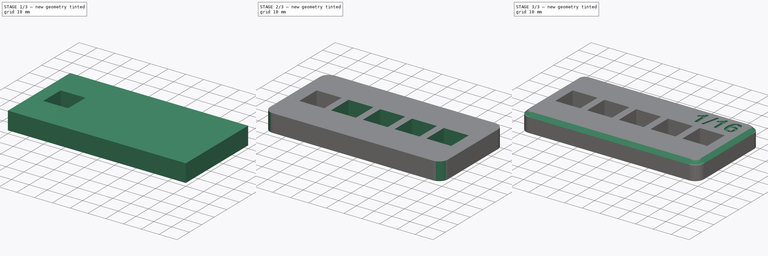
[diagram: build sequence overview — one tinted view per stage of 3, left to right]
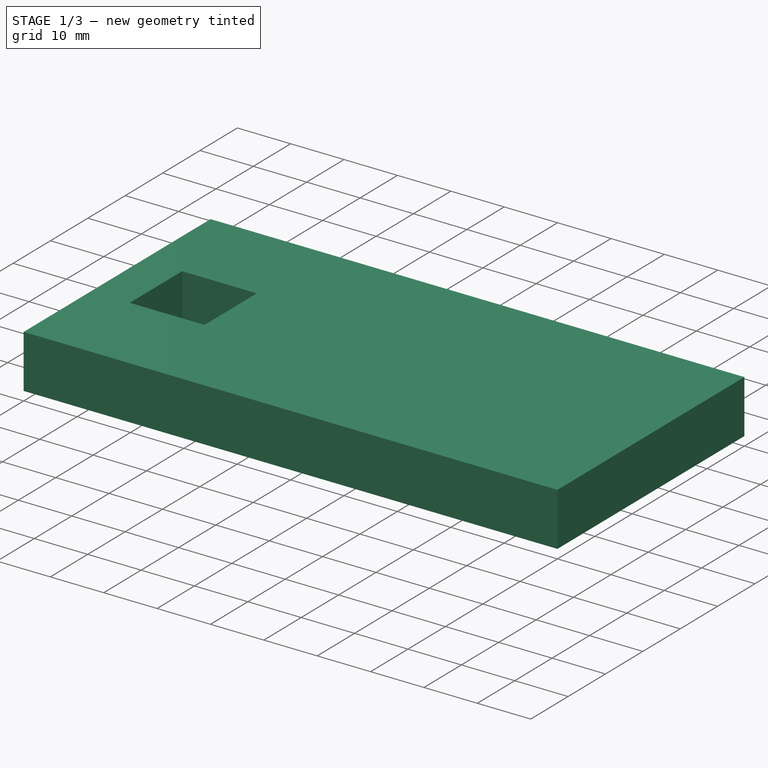
[diagram: stage 1 of 3 — iso view after this stage's code; geometry added in this stage tinted green]
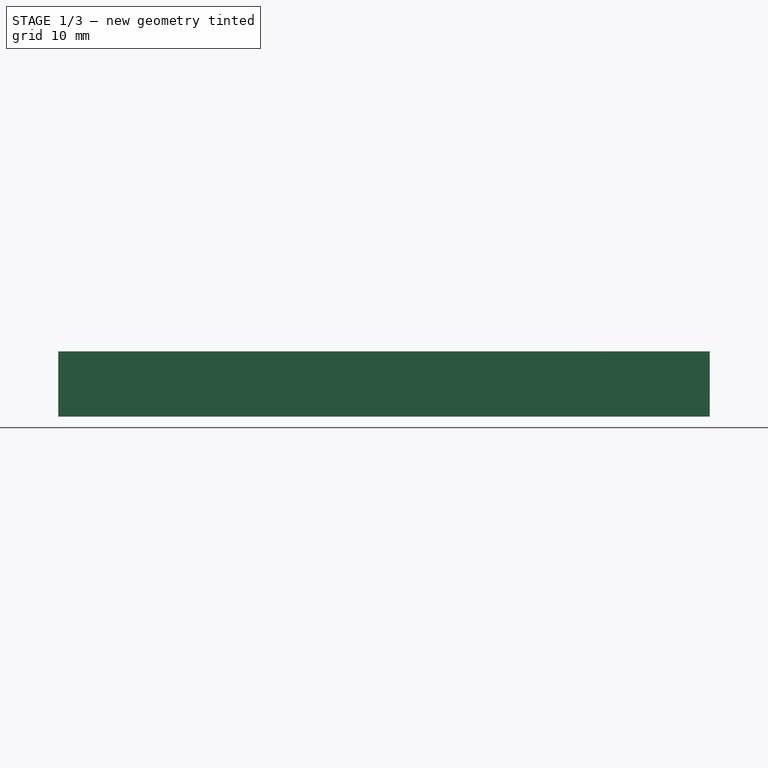
[diagram: stage 1 of 3 — front view after this stage's code; geometry added in this stage tinted green]
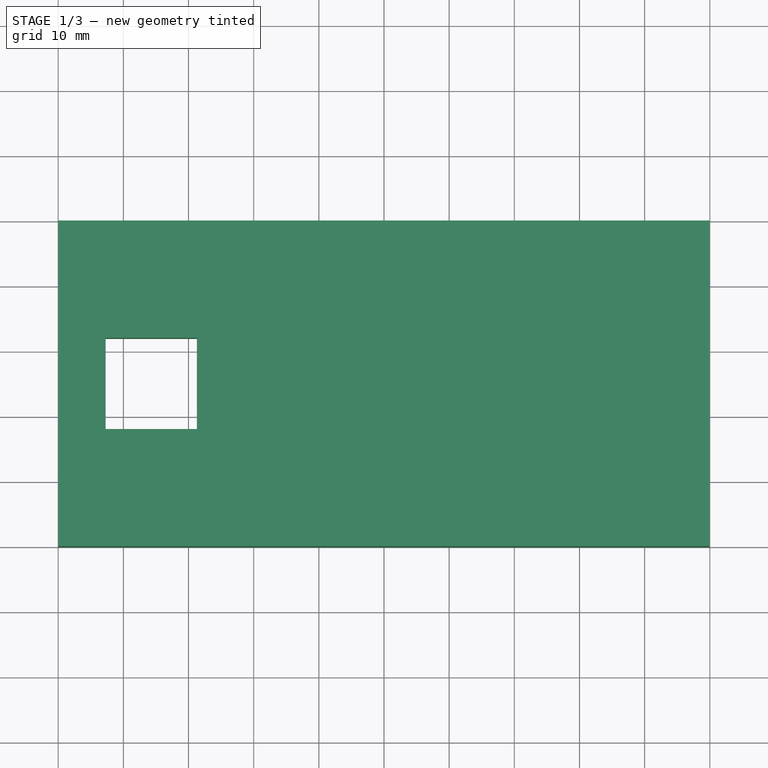
[diagram: stage 1 of 3 — top view after this stage's code; geometry added in this stage tinted green]
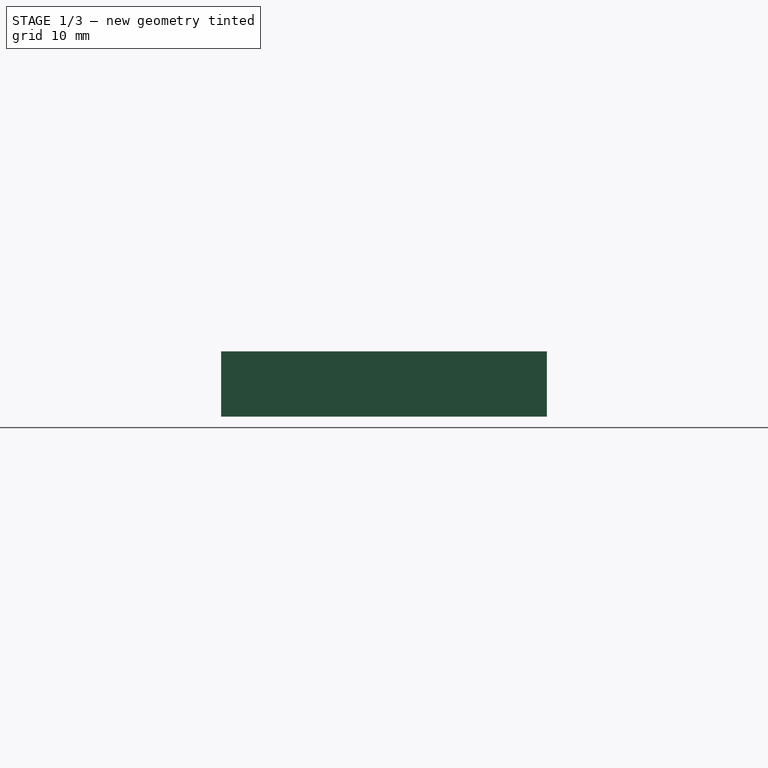
[diagram: stage 1 of 3 — right view after this stage's code; geometry added in this stage tinted green]
FCSTD DOCUMENT  (FreeCAD 0.21R33771 (Git))
Label: NarrowKeyTestRig
License: All rights reserved
LicenseURL: http://en.wikipedia.org/wiki/All_rights_reserved
objects: PartDesign::Pocket×2, Part::Part2DObjectPython×2, PartDesign::AdditiveBox×1, Sketcher::SketchObject×1, PartDesign::FeaturePython×1, PartDesign::Fillet×1, PartDesign::Chamfer×1, Spreadsheet::Sheet×1, PartDesign::Body×1
note: 15 computed .brp shape members not serialized (recipe doc carries the construction recipe); baked Part::Feature solids carry a one-line shape summary decoded from their .brp

FEATURE [PartDesign::AdditiveBox] Box
  AttacherType = Attacher::AttachEngine3D
  Height = 10
  Length = 100
  Width = 50
FEATURE [Sketcher::SketchObject] Sketch
  ExternalGeometry = -> [Box]
  FullyConstrained = true
  MapMode = 5
  Placement = pos=(0,0,10) rot=(0,0,1;0rad)
  Support = -> [Box]
  expr: Constraints[16] = 50 - (14 + 4 * (1 - <<Spreadsheet>>.shave) * 19.05) / 2 + 7
  sketch-geometry (7):
    g0: LineSegment StartX=7.28125 StartY=32 StartZ=0 EndX=21.2812 EndY=32 EndZ=0
    g1: LineSegment StartX=21.2812 StartY=32 StartZ=0 EndX=21.2812 EndY=18 EndZ=0
    g2: LineSegment StartX=21.2812 StartY=18 StartZ=0 EndX=7.28125 EndY=18 EndZ=0
    g3: LineSegment StartX=7.28125 StartY=18 StartZ=0 EndX=7.28125 EndY=32 EndZ=0
    g4: GeomPoint X=14.2812 Y=25 Z=0
    g5: LineSegment StartX=0 StartY=50 StartZ=0 EndX=14.2812 EndY=25 EndZ=0
    g6: LineSegment StartX=0 StartY=0 StartZ=0 EndX=14.2812 EndY=25 EndZ=0
  constraints (17):
    c: Coincident(g0,g1)
    c: Coincident(g1,g2)
    c: Coincident(g2,g3)
    c: Coincident(g3,g0)
    c: Horizontal(g0)
    c: Horizontal(g2)
    c: Vertical(g1)
    c: Vertical(g3)
    c: DistanceX(g2,g2) = 14
    c: Equal(g2,g1)
    c: Symmetric(g2,g0,g4)
    c: Coincident(g5,g-3)
    c: Coincident(g5,g4)
    c: Coincident(g6,g-1)
    c: Coincident(g6,g4)
    c: Equal(g5,g6)
    c: DistanceX(g5,g4) = 14.2812
FEATURE [PartDesign::Pocket] Pocket
  BaseFeature = -> Box
  Direction = (0,0,-1)
  Length = 5
  Length2 = 5
  Profile = -> Sketch
  ReferenceAxis = -> Sketch [N_Axis]
  Type = 1
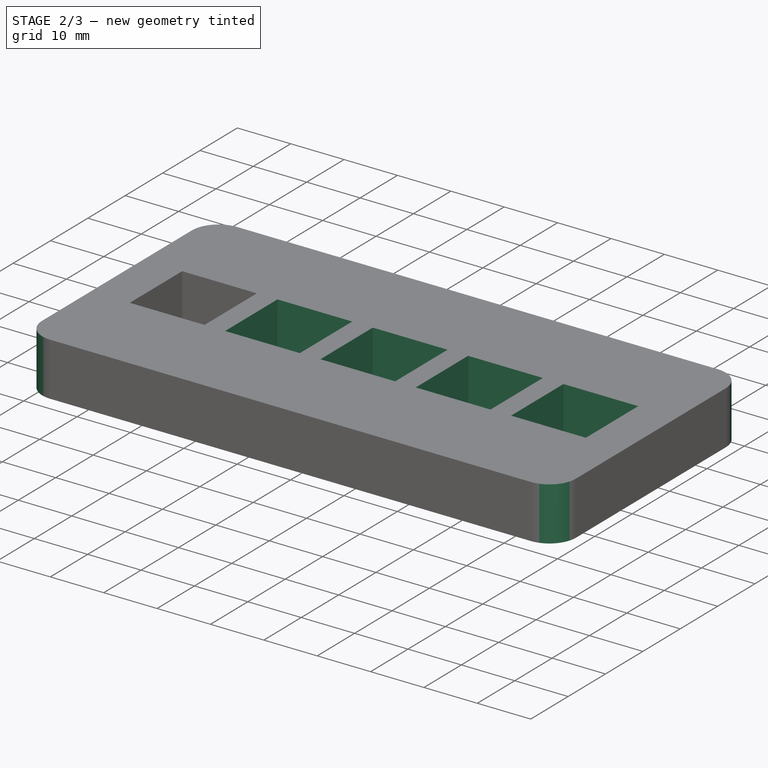
[diagram: stage 2 of 3 — iso view after this stage's code; geometry added in this stage tinted green]
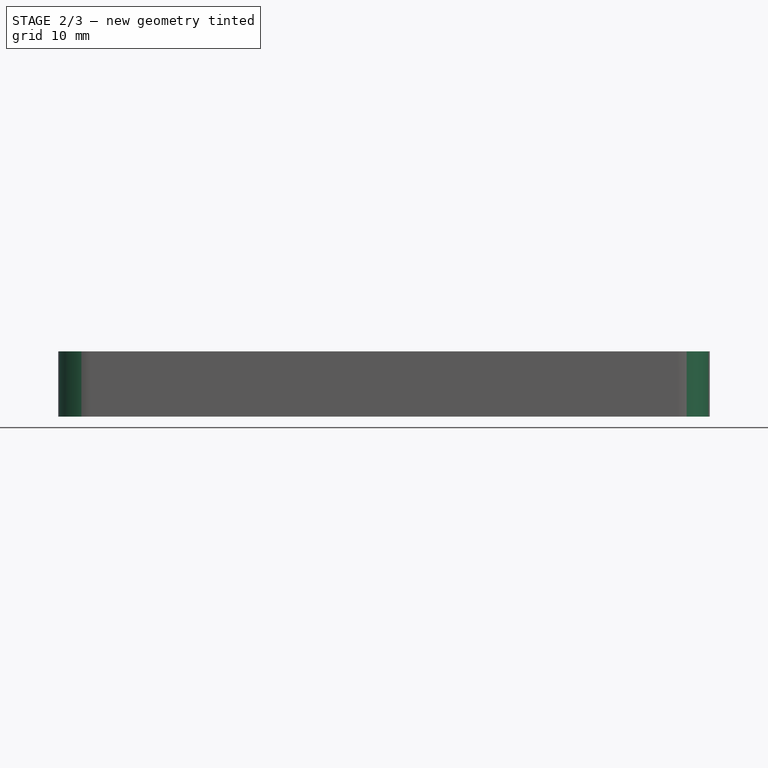
[diagram: stage 2 of 3 — front view after this stage's code; geometry added in this stage tinted green]
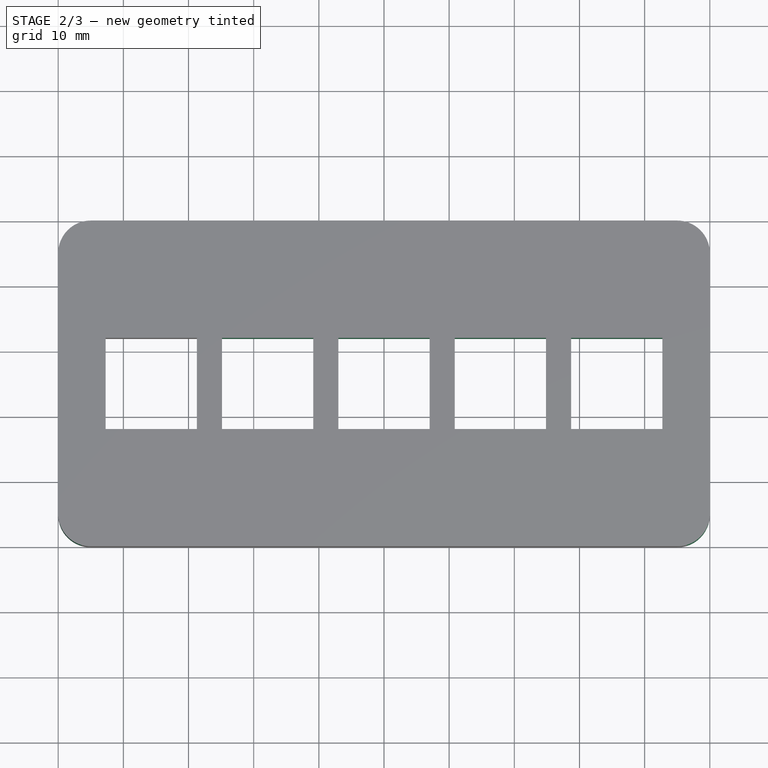
[diagram: stage 2 of 3 — top view after this stage's code; geometry added in this stage tinted green]
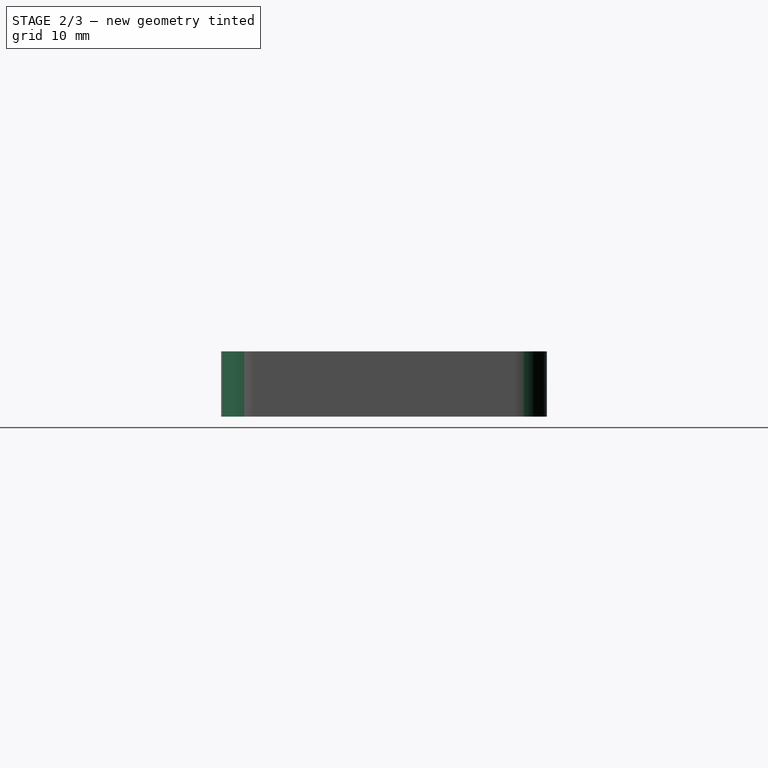
[diagram: stage 2 of 3 — right view after this stage's code; geometry added in this stage tinted green]
FEATURE [Part::Part2DObjectPython] LinearArray  # Draft 2D object (typed FeaturePython)
  Alignment = 0
  AttacherType = Attacher::AttachEngine3D
  CellStart = A1
  Count = 5
  Dir = (1,0,0)
  DirIsDriven = true
  DistributionLaw = 0
  DrivenProperty = 1
  EndInclusive = true
  ExposePlacement = false
  GeneratorMode = 1
  Link = -> Pocket
  LinkSubelement = Edge7
  MarkerShape = 1
  MarkerSize = 0
  NumElements = 5
  OrientMode = 1
  Point = (0,0,10)
  PointIsDriven = true
  Reverse = false
  SpanEnd = 100
  SpanStart = 0
  Step = 17.8594
  SubLink = -> Pocket [Edge7]
  Type = lattice2LinearArray.LinearArray
  VSGVersion = 1
  Values = 0.0 | 17.859375 | 35.71875 | 53.578125 | 71.4375
  ValuesSource = 2
  isLattice = 1
  expr: Step = (1 - <<Spreadsheet>>.shave) * 19.05
FEATURE [PartDesign::FeaturePython] LatticePattern  # WARN: FeaturePython — macro-defined, semantics opaque (R4)
  BaseFeature = -> Pocket
  FeaturesToCopy = -> [Pocket]
  IgnoreUnsupported = false
  PlacementsTo = -> LinearArray
  Referencing = 1
  Selfintersections = false
  SignOverride = 0
  SkipFirstInBody = false
FEATURE [PartDesign::Fillet] Fillet
  Base = -> LatticePattern [Edge31,Edge3,Edge1,Edge6]
  BaseFeature = -> LatticePattern
  Radius = 5
  SupportTransform = false
  UseAllEdges = false
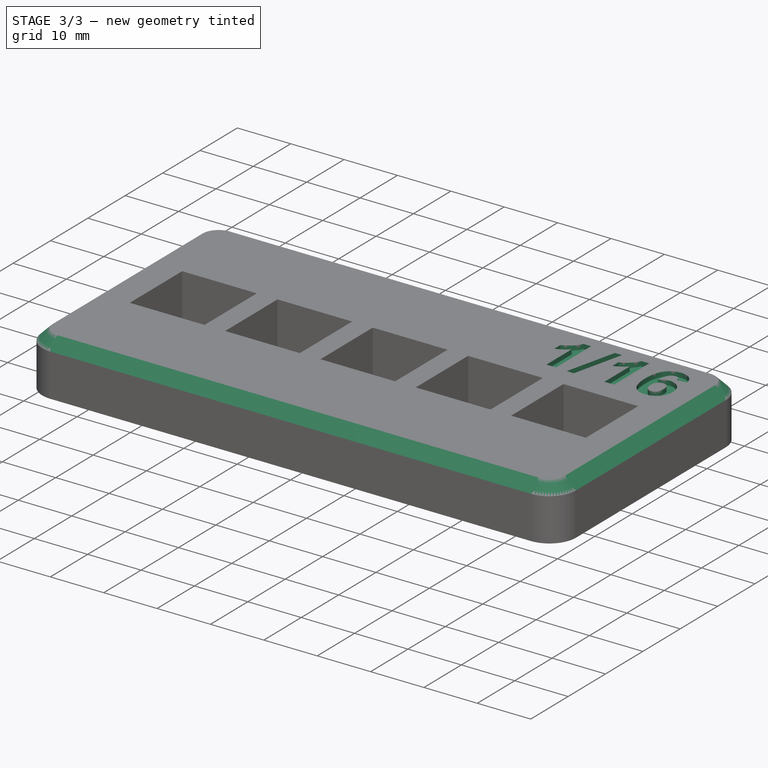
[diagram: stage 3 of 3 — iso view after this stage's code; geometry added in this stage tinted green]
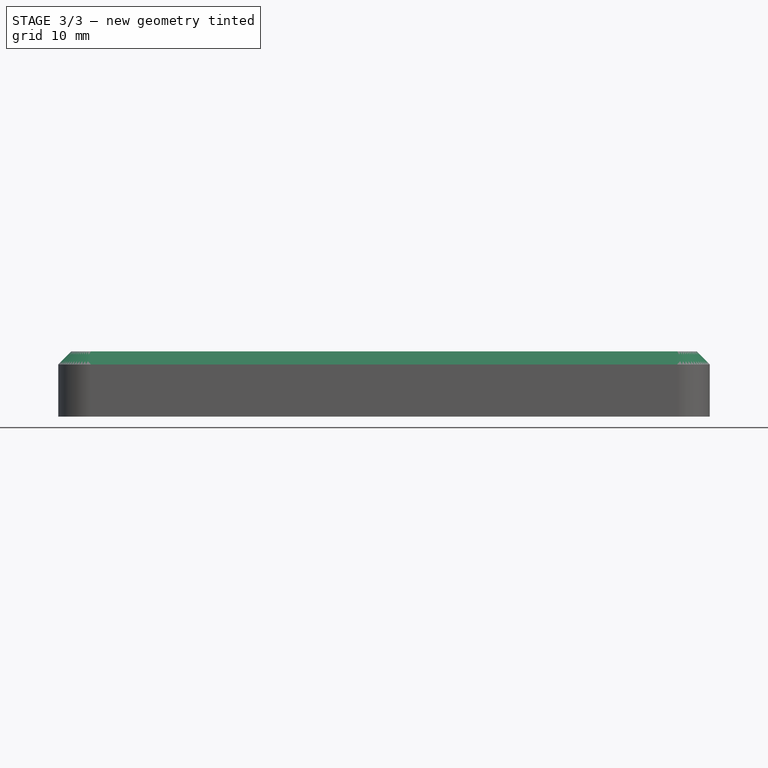
[diagram: stage 3 of 3 — front view after this stage's code; geometry added in this stage tinted green]
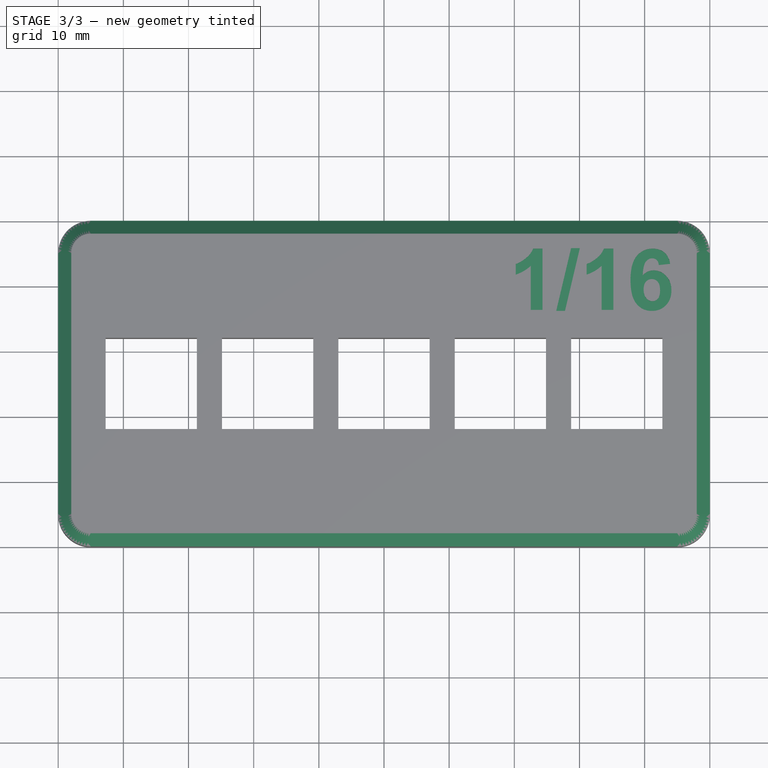
[diagram: stage 3 of 3 — top view after this stage's code; geometry added in this stage tinted green]
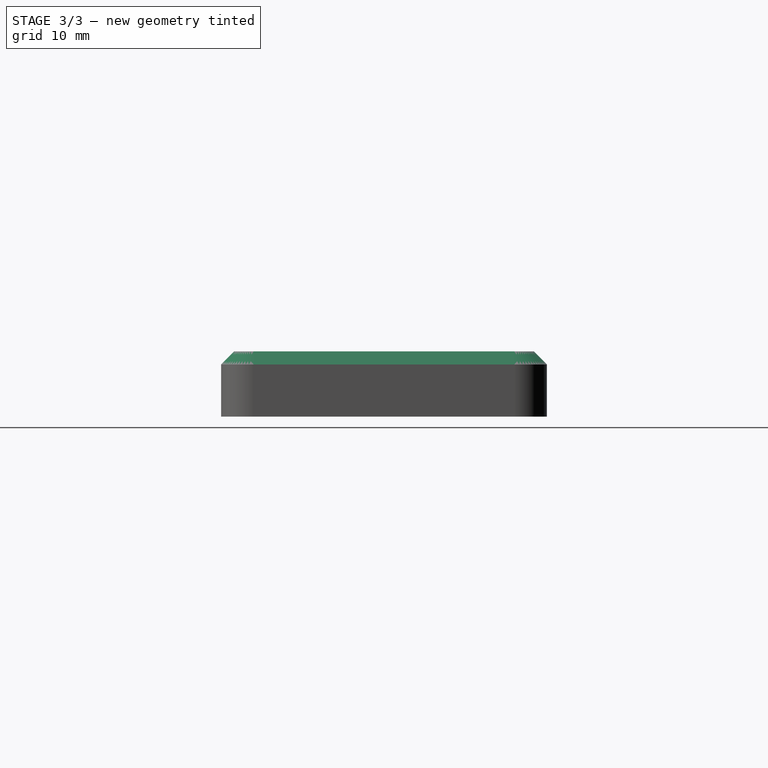
[diagram: stage 3 of 3 — right view after this stage's code; geometry added in this stage tinted green]
FEATURE [PartDesign::Chamfer] Chamfer
  Angle = 45
  Base = -> Fillet [Edge7]
  BaseFeature = -> Fillet
  ChamferType = 0
  FlipDirection = false
  Size = 2
  Size2 = 1
  SupportTransform = false
  UseAllEdges = false
FEATURE [Spreadsheet::Sheet] Spreadsheet
  cells = A1='Shaved distance (U); B1='Inverse shave (U-1); A2(shave)==1 / $B2; B2(inverseShave)=16
FEATURE [Part::Part2DObjectPython] ShapeString  # Draft 2D object (typed FeaturePython)
  FontFile = <path>
  MakeFace = true
  Placement = pos=(69.1861,36.292,10.1342) rot=(0,0,1;0rad)
  Size = 10
  String = 1/16
  Tracking = 0
  expr: String = <<1/>> + str(<<Spreadsheet>>.inverseShave)
FEATURE [PartDesign::Pocket] Pocket001
  BaseFeature = -> Chamfer
  Direction = (0,0,-1)
  Length = 1
  Length2 = 5
  Profile = -> ShapeString
  ReferenceAxis = -> ShapeString [N_Axis]
  Type = 0
FEATURE [PartDesign::Body] Body
  Group = -> [Box,Sketch,Pocket,LinearArray,LatticePattern,Fillet,Chamfer,ShapeString,Pocket001]
  Origin = -> Origin
  Tip = -> Pocket001
note: 1 file-system path scrubbed to <path> (originals preserved in the JSON sidecar)
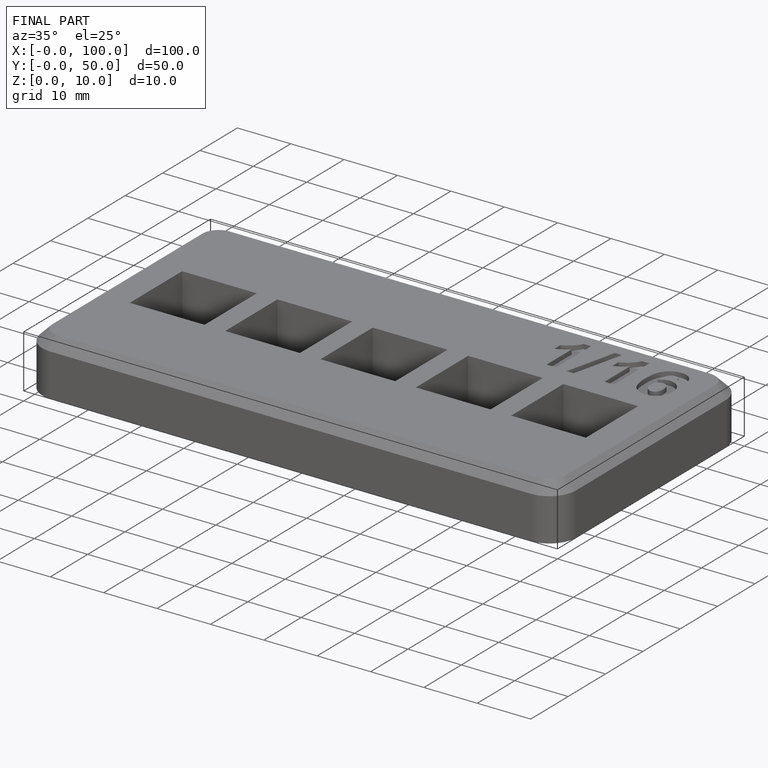
[diagram: finished part — iso view with bounding-box wireframe]
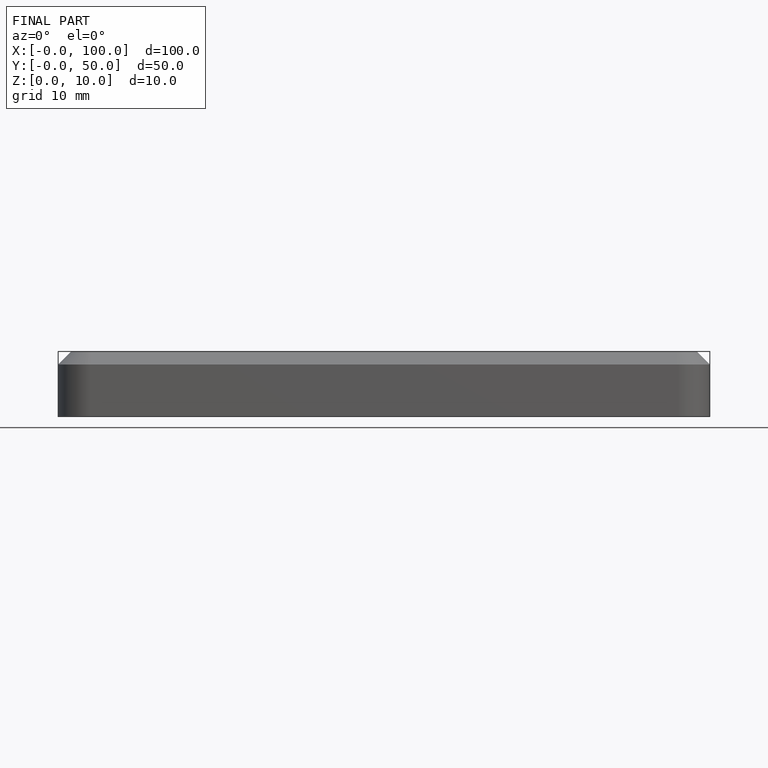
[diagram: finished part — front view with bounding-box wireframe]
